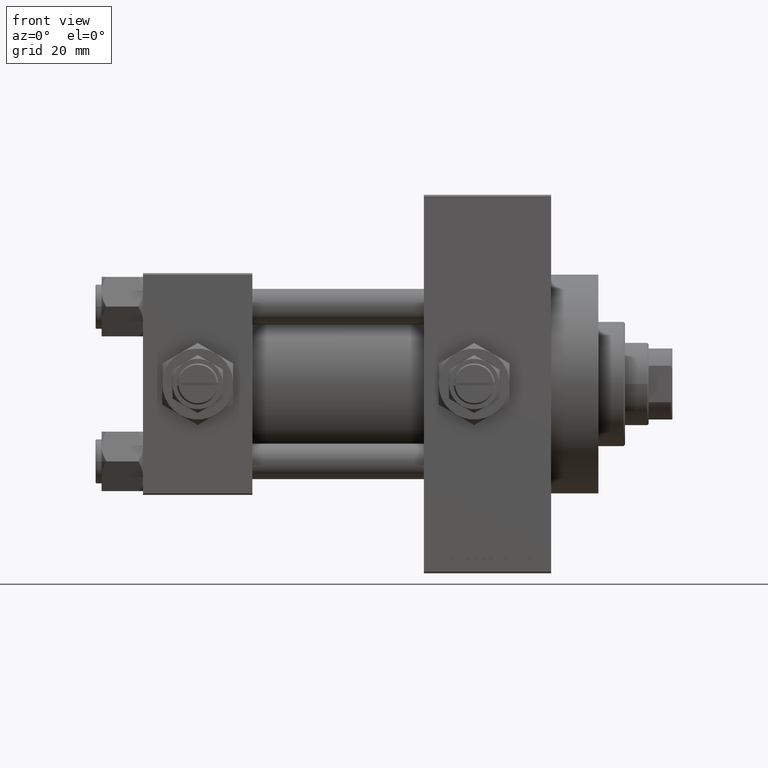
[diagram: clean part render]
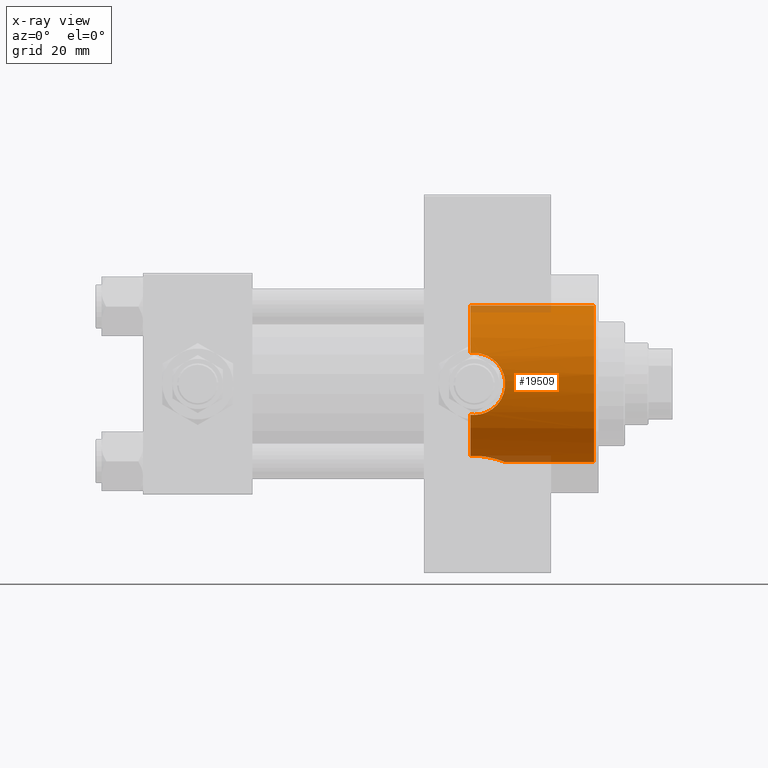
[diagram: x-ray — body ghosted, one internal face saturated and labeled with its STEP entity id]
A machine part, front view, then the same camera in x-ray: the body is ghosted and one INTERNAL B-rep face — a face not visible from any outside direction — is saturated and labeled: STEP entity #19509.
In plain terms, the highlighted cylindrical surface (partial cylindrical patch) has radius 26.5 mm, axis along (1, 0, 0).
Its self-contained STEP definition (entity closure, byte-faithful):
#409 = ORIENTED_EDGE ( 'NONE', *, *, #35284, .F. ) ;
#977 = AXIS2_PLACEMENT_3D ( 'NONE', #16472, #46018, #31722 ) ;
#1000 = CARTESIAN_POINT ( 'NONE',  ( 111.1611364518797984, -24.35049096341792918, -10.45498279016081611 ) ) ;
#1125 = CIRCLE ( 'NONE', #23466, 26.50000000000000355 ) ;
#1162 = ORIENTED_EDGE ( 'NONE', *, *, #44174, .F. ) ;
#1484 = CARTESIAN_POINT ( 'NONE',  ( 122.4800000000001603, 1.044554909417470286E-14, -26.50000000000006750 ) ) ;
#1740 = CARTESIAN_POINT ( 'NONE',  ( 116.5335921408433535, -9.455792512420327256, -24.75606841526506940 ) ) ;
#1938 = CARTESIAN_POINT ( 'NONE',  ( 119.8811664359166400, -25.58300917221409421, -6.916171625962136638 ) ) ;
#1967 = VERTEX_POINT ( 'NONE', #41189 ) ;
#1989 = CARTESIAN_POINT ( 'NONE',  ( 117.8022832347253370, -8.734885810676978224, -25.02004257437574708 ) ) ;
#2185 = CARTESIAN_POINT ( 'NONE',  ( 122.4800680225664280, -26.50002690099941205, -0.3451042088078361547 ) ) ;
#2230 = CARTESIAN_POINT ( 'NONE',  ( 114.4459359432478038, -10.21777125531387753, -24.45211332338677579 ) ) ;
#2685 = CARTESIAN_POINT ( 'NONE',  ( 116.3489237122697091, -24.72318467201152714, -9.541179571695423078 ) ) ;
#2860 = EDGE_CURVE ( 'NONE', #19227, #2862, #24876, .T. ) ;
#2862 = VERTEX_POINT ( 'NONE', #26405 ) ;
#3559 = ORIENTED_EDGE ( 'NONE', *, *, #49383, .T. ) ;
#3914 = CARTESIAN_POINT ( 'NONE',  ( 122.2075249541714896, -26.39335609204158573, 2.399236127628239235 ) ) ;
#4129 = B_SPLINE_CURVE_WITH_KNOTS ( 'NONE', 3,
 ( #1484, #16757, #28504, #47787, #47296, #39777, #5509, #13261, #17738, #32256, #43782, #44028, #5759, #13747, #20998, #1989, #36008, #32747, #1740, #24987, #40274, #2230, #29000, #47542, #44276, #10005 ),
 .UNSPECIFIED., .F., .F.,
 ( 4, 2, 2, 2, 2, 2, 2, 2, 2, 2, 2, 2, 4 ),
 ( 0.01781170071191075926, 0.02003745927526345838, 0.02115033855693980447, 0.02226321783861615403, 0.02337609712029250011, 0.02448897640196884967, 0.02671473496532152103, 0.02782761424699785324, 0.02894049352867418545, 0.03005337281035051766, 0.03116625209202684987, 0.03339201065537952123, 0.03561776921873219259 ),
 .UNSPECIFIED. ) ;
#4331 = LINE ( 'NONE', #33678, #47476 ) ;
#5095 = ORIENTED_EDGE ( 'NONE', *, *, #10393, .T. ) ;
#5247 = CARTESIAN_POINT ( 'NONE',  ( 112.0000000000000000, -24.33967132070604222, -10.47999999999999865 ) ) ;
#5463 = CARTESIAN_POINT ( 'NONE',  ( 120.3132647636415271, -25.71940794313460898, -6.390292897823913520 ) ) ;
#5509 = CARTESIAN_POINT ( 'NONE',  ( 121.6993435614955530, -3.985990130492286454, -26.20070574291653287 ) ) ;
#5759 = CARTESIAN_POINT ( 'NONE',  ( 119.5076201536012235, -7.348534936426531772, -25.46581292754184389 ) ) ;
#5760 = CARTESIAN_POINT ( 'NONE',  ( 110.7400000000000375, -24.37226292324945831, -10.40398000767014430 ) ) ;
#5956 = CARTESIAN_POINT ( 'NONE',  ( 112.0000000000000000, -24.33967132070604222, -10.47999999999999865 ) ) ;
#6692 = CARTESIAN_POINT ( 'NONE',  ( 121.9191483855533704, -26.28308039691835418, 3.400110870430098853 ) ) ;
#6937 = CARTESIAN_POINT ( 'NONE',  ( 121.3916535229813576, -26.08830885934473542, 4.663043711798784408 ) ) ;
#7666 = CARTESIAN_POINT ( 'NONE',  ( 115.7173844672076370, -24.61993612039164248, 9.804529592362731805 ) ) ;
#8776 = CARTESIAN_POINT ( 'NONE',  ( 110.7400000000000375, -24.37226292324945831, -10.40398000767014430 ) ) ;
#8795 = CARTESIAN_POINT ( 'NONE',  ( 110.7400000000000375, -10.40398000767013365, -24.37226292324945831 ) ) ;
#8924 = EDGE_CURVE ( 'NONE', #41801, #49029, #1125, .T. ) ;
#9459 = DIRECTION ( 'NONE',  ( 0.000000000000000000, 0.000000000000000000, -1.000000000000000000 ) ) ;
#9528 = EDGE_CURVE ( 'NONE', #12130, #19227, #4331, .T. ) ;
#10005 = CARTESIAN_POINT ( 'NONE',  ( 110.7400000000000375, -10.40398000767013365, -24.37226292324945831 ) ) ;
#10393 = EDGE_CURVE ( 'NONE', #45778, #16670, #33945, .T. ) ;
#10945 = CARTESIAN_POINT ( 'NONE',  ( 118.1110651716822275, -25.09360970262138224, 8.520611273842996880 ) ) ;
#11033 = ORIENTED_EDGE ( 'NONE', *, *, #2860, .T. ) ;
#11169 = DIRECTION ( 'NONE',  ( 0.000000000000000000, 0.000000000000000000, -1.000000000000000000 ) ) ;
#11187 = CARTESIAN_POINT ( 'NONE',  ( 113.3839948142214524, -24.36973996242157625, 10.41091756284553504 ) ) ;
#11314 = ORIENTED_EDGE ( 'NONE', *, *, #26562, .T. ) ;
#12130 = VERTEX_POINT ( 'NONE', #15766 ) ;
#13261 = CARTESIAN_POINT ( 'NONE',  ( 121.3963988635402984, -4.655434592126339588, -26.09007526830299639 ) ) ;
#13558 = LINE ( 'NONE', #46734, #33556 ) ;
#13747 = CARTESIAN_POINT ( 'NONE',  ( 118.6874981071936759, -8.077221093107549876, -25.24030799844107520 ) ) ;
#14296 = VERTEX_POINT ( 'NONE', #21015 ) ;
#14930 = CARTESIAN_POINT ( 'NONE',  ( 120.3165002292777785, -25.71874665637611201, 6.413821170274212946 ) ) ;
#15333 = CARTESIAN_POINT ( 'NONE',  ( 110.7400000000000375, 0.000000000000000000, 0.000000000000000000 ) ) ;
#15650 = ORIENTED_EDGE ( 'NONE', *, *, #28649, .T. ) ;
#15766 = CARTESIAN_POINT ( 'NONE',  ( 110.7400000000000375, 3.245314017740486554E-15, 26.50000000000000355 ) ) ;
#15882 = CARTESIAN_POINT ( 'NONE',  ( 152.5000000000000853, 0.000000000000000000, 0.000000000000000000 ) ) ;
#16270 = CARTESIAN_POINT ( 'NONE',  ( 111.5811236364006049, -24.33967132070604222, -10.47999999999999865 ) ) ;
#16472 = CARTESIAN_POINT ( 'NONE',  ( 110.7400000000000375, 0.000000000000000000, 0.000000000000000000 ) ) ;
#16670 = VERTEX_POINT ( 'NONE', #44573 ) ;
#16757 = CARTESIAN_POINT ( 'NONE',  ( 122.4800000000000324, -0.7466733969459961040, -26.50000000000001421 ) ) ;
#16966 = CARTESIAN_POINT ( 'NONE',  ( 121.0816778311290136, -25.97633853132261450, -5.273786452924785983 ) ) ;
#17049 = CARTESIAN_POINT ( 'NONE',  ( 110.7400000000000375, -24.37226292324945476, 10.40398000767014786 ) ) ;
#17205 = CARTESIAN_POINT ( 'NONE',  ( 122.1391112229688076, -26.36675217432884466, -2.738755341944245192 ) ) ;
#17451 = CARTESIAN_POINT ( 'NONE',  ( 122.4798633477534509, -26.49994595790488106, 0.6963870350870486892 ) ) ;
#17738 = CARTESIAN_POINT ( 'NONE',  ( 121.2276638786152176, -4.981583166679953045, -26.02957788900646463 ) ) ;
#17936 = CARTESIAN_POINT ( 'NONE',  ( 117.2635990777562256, -24.90054338428140568, -9.068796382691635571 ) ) ;
#18177 = FACE_OUTER_BOUND ( 'NONE', #40041, .T. ) ;
#18425 = CARTESIAN_POINT ( 'NONE',  ( 119.8850942087585736, -25.58093385762820660, 6.936447548980011035 ) ) ;
#18490 = AXIS2_PLACEMENT_3D ( 'NONE', #15882, #45442, #11169 ) ;
#18911 = CARTESIAN_POINT ( 'NONE',  ( 119.1663633815065140, -25.37171319999174912, 7.654298772871992895 ) ) ;
#19151 = CARTESIAN_POINT ( 'NONE',  ( 112.6982936874238703, -24.33967132070603867, 10.47999999999999865 ) ) ;
#19227 = VERTEX_POINT ( 'NONE', #47798 ) ;
#19425 = B_SPLINE_CURVE_WITH_KNOTS ( 'NONE', 3,
 ( #8776, #1000, #16270, #32022 ),
 .UNSPECIFIED., .F., .F.,
 ( 4, 4 ),
 ( 0.000000000000000000, 0.001255586767787659347 ),
 .UNSPECIFIED. ) ;
#19509 = ADVANCED_FACE ( 'NONE', ( #18177 ), #36702, .F. ) ;
#20703 = CARTESIAN_POINT ( 'NONE',  ( 120.5155153844950462, -25.78569419426082021, -6.118106053452859960 ) ) ;
#20998 = CARTESIAN_POINT ( 'NONE',  ( 118.3983008714430696, -8.308216825530728045, -25.16494175890557017 ) ) ;
#21015 = CARTESIAN_POINT ( 'NONE',  ( 122.4800000000001603, 1.044554909417470286E-14, -26.50000000000006750 ) ) ;
#21035 = CARTESIAN_POINT ( 'NONE',  ( 112.0000000000000000, -24.33967132070604222, 10.48000000000000220 ) ) ;
#21193 = CARTESIAN_POINT ( 'NONE',  ( 122.3421836049517140, -26.44572692659851754, -1.728475508984260278 ) ) ;
#22167 = DIRECTION ( 'NONE',  ( 1.000000000000000000, -0.000000000000000000, -0.000000000000000000 ) ) ;
#22911 = CARTESIAN_POINT ( 'NONE',  ( 121.8022638174866046, -26.23907308479208922, 3.723318718764354163 ) ) ;
#23466 = AXIS2_PLACEMENT_3D ( 'NONE', #15333, #45862, #26821 ) ;
#24693 = CARTESIAN_POINT ( 'NONE',  ( 116.6580558779861150, -24.77960996754317335, -9.394203453174529983 ) ) ;
#24876 = CIRCLE ( 'NONE', #18490, 26.50000000000000355 ) ;
#24987 = CARTESIAN_POINT ( 'NONE',  ( 115.8600678267363406, -9.750145953289912626, -24.64162310621549423 ) ) ;
#25691 = CARTESIAN_POINT ( 'NONE',  ( 119.6501220615578234, -25.51256335955728716, -7.170912732211446539 ) ) ;
#25933 = CARTESIAN_POINT ( 'NONE',  ( 117.2636119660474066, -24.89625137302610369, 9.087734872939172703 ) ) ;
#26362 = AXIS2_PLACEMENT_3D ( 'NONE', #32695, #39980, #9459 ) ;
#26405 = CARTESIAN_POINT ( 'NONE',  ( 152.5000000000000853, 0.000000000000000000, -26.50000000000000355 ) ) ;
#26562 = EDGE_CURVE ( 'NONE', #14296, #49029, #4129, .T. ) ;
#26668 = CARTESIAN_POINT ( 'NONE',  ( 114.3947302122627718, -24.45488967133337965, 10.20851256290626985 ) ) ;
#26821 = DIRECTION ( 'NONE',  ( 0.000000000000000000, 0.000000000000000000, -1.000000000000000000 ) ) ;
#28460 = CARTESIAN_POINT ( 'NONE',  ( 112.6904960883777846, -24.33967132070604222, -10.48000000000000043 ) ) ;
#28504 = CARTESIAN_POINT ( 'NONE',  ( 122.4011065554137900, -1.483758503940586060, -26.46850309434598003 ) ) ;
#28649 = EDGE_CURVE ( 'NONE', #41801, #45778, #19425, .T. ) ;
#29000 = CARTESIAN_POINT ( 'NONE',  ( 113.7216423275559407, -10.36418010715235383, -24.38933169417625990 ) ) ;
#29442 = CARTESIAN_POINT ( 'NONE',  ( 117.5577538920436780, -24.96463143003449403, -8.891425016462852327 ) ) ;
#29937 = CARTESIAN_POINT ( 'NONE',  ( 114.7286532048194516, -24.48994387988090082, 10.12445329003761252 ) ) ;
#30186 = CARTESIAN_POINT ( 'NONE',  ( 121.5385175848662982, -26.14168889184968947, 4.354785931857526826 ) ) ;
#31722 = DIRECTION ( 'NONE',  ( 0.000000000000000000, 0.000000000000000000, -1.000000000000000000 ) ) ;
#32022 = CARTESIAN_POINT ( 'NONE',  ( 112.0000000000000000, -24.33967132070604222, -10.47999999999999865 ) ) ;
#32256 = CARTESIAN_POINT ( 'NONE',  ( 120.8553297434205689, -5.616857363200493225, -25.89992295911057951 ) ) ;
#32655 = B_SPLINE_CURVE_WITH_KNOTS ( 'NONE', 3,
 ( #21035, #35800, #39818, #17049 ),
 .UNSPECIFIED., .F., .F.,
 ( 4, 4 ),
 ( 0.03437190755806011910, 0.03561776921873218565 ),
 .UNSPECIFIED. ) ;
#32695 = CARTESIAN_POINT ( 'NONE',  ( 110.7400000000000375, 0.000000000000000000, 0.000000000000000000 ) ) ;
#32747 = CARTESIAN_POINT ( 'NONE',  ( 116.8603660912149991, -9.291949300782539112, -24.81826977973611292 ) ) ;
#33556 = VECTOR ( 'NONE', #37556, 1000.000000000000000 ) ;
#33678 = CARTESIAN_POINT ( 'NONE',  ( 110.7400000000000375, 3.245314017740486554E-15, 26.50000000000000355 ) ) ;
#33685 = CARTESIAN_POINT ( 'NONE',  ( 115.3904700717597649, -24.57248644795726022, 9.922439993611771314 ) ) ;
#33929 = CARTESIAN_POINT ( 'NONE',  ( 122.4114040688938587, -26.47265107862981992, 1.382412405478188999 ) ) ;
#33945 = B_SPLINE_CURVE_WITH_KNOTS ( 'NONE', 3,
 ( #5956, #28460, #36212, #35962, #36949, #2685, #24693, #17936, #29442, #39982, #44723, #25691, #1938, #5463, #20703, #16966, #47495, #40228, #17205, #21193, #47742, #36456, #2185, #17451, #33929, #3914, #49213, #6692, #22911, #30186, #6937, #34420, #41710, #14930, #18425, #18911, #38186, #45461, #10945, #25933, #37447, #7666, #33685, #29937, #26668, #11187, #19151, #45217 ),
 .UNSPECIFIED., .F., .F.,
 ( 4, 2, 2, 2, 2, 2, 2, 2, 2, 2, 2, 2, 2, 2, 2, 2, 2, 2, 2, 2, 2, 2, 2, 4 ),
 ( 0.001255586767787659347, 0.003325356817179700875, 0.005395126866571742404, 0.006430011891267743869, 0.007464896915963744467, 0.009534666965355782092, 0.01056955199005181305, 0.01160443701474784574, 0.01367420706413988857, 0.01574397711353192966, 0.01677886213822795194, 0.01781374716292397076, 0.01988351721231601532, 0.02091840223701203413, 0.02195328726170805295, 0.02298817228640406482, 0.02402305731110008363, 0.02609282736049212126, 0.02712771238518812619, 0.02816259740988413460, 0.03023236745927610630, 0.03126725248397210777, 0.03230213750866811617, 0.03437190755806011910 ),
 .UNSPECIFIED. ) ;
#34420 = CARTESIAN_POINT ( 'NONE',  ( 121.0679913760332198, -25.97354752128884314, 5.264851845784580320 ) ) ;
#35284 = EDGE_CURVE ( 'NONE', #14296, #2862, #13558, .T. ) ;
#35800 = CARTESIAN_POINT ( 'NONE',  ( 111.5796744023297293, -24.33967132070604222, 10.48000000000000220 ) ) ;
#35962 = CARTESIAN_POINT ( 'NONE',  ( 114.7461877943153752, -24.48462605612510856, -10.13781324604279099 ) ) ;
#36008 = CARTESIAN_POINT ( 'NONE',  ( 117.4947120380321479, -8.931495953537135435, -24.95025484238639635 ) ) ;
#36212 = CARTESIAN_POINT ( 'NONE',  ( 113.3786097457406044, -24.36915941385104745, -10.41231194222669387 ) ) ;
#36456 = CARTESIAN_POINT ( 'NONE',  ( 122.4626037639855838, -26.49310609510639836, -0.6963515910539334053 ) ) ;
#36702 = CYLINDRICAL_SURFACE ( 'NONE', #26362, 26.50000000000000355 ) ;
#36932 = ORIENTED_EDGE ( 'NONE', *, *, #9528, .T. ) ;
#36949 = CARTESIAN_POINT ( 'NONE',  ( 115.4024368383431352, -24.56844862672225815, -9.935854460437969493 ) ) ;
#37447 = CARTESIAN_POINT ( 'NONE',  ( 116.6659000583122605, -24.77500862834706652, 9.408993987884901600 ) ) ;
#37556 = DIRECTION ( 'NONE',  ( 1.000000000000000000, -0.000000000000000000, -0.000000000000000000 ) ) ;
#38186 = CARTESIAN_POINT ( 'NONE',  ( 118.9147507852791676, -25.30155050139244111, 7.882476147205595751 ) ) ;
#38523 = CIRCLE ( 'NONE', #977, 26.50000000000000355 ) ;
#39777 = CARTESIAN_POINT ( 'NONE',  ( 121.8335546017134305, -3.642695553053290958, -26.25084325021122567 ) ) ;
#39818 = CARTESIAN_POINT ( 'NONE',  ( 111.1580741051582635, -24.35064928096444348, 10.45461191700782422 ) ) ;
#39980 = DIRECTION ( 'NONE',  ( 1.000000000000000000, -0.000000000000000000, -0.000000000000000000 ) ) ;
#39982 = CARTESIAN_POINT ( 'NONE',  ( 118.4049404352972061, -25.16229795609818964, -8.322848467437539810 ) ) ;
#40041 = EDGE_LOOP ( 'NONE', ( #1162, #36932, #11033, #409, #11314, #44291, #15650, #5095, #3559 ) ) ;
#40228 = CARTESIAN_POINT ( 'NONE',  ( 121.9389570606566053, -26.28956209411557765, -3.395175965175880606 ) ) ;
#40274 = CARTESIAN_POINT ( 'NONE',  ( 115.5115735695664796, -9.881194972351249106, -24.58915736193083745 ) ) ;
#41189 = CARTESIAN_POINT ( 'NONE',  ( 110.7400000000000375, -24.37226292324945476, 10.40398000767014786 ) ) ;
#41710 = CARTESIAN_POINT ( 'NONE',  ( 120.8904987776702171, -25.91192981801191664, 5.559420023815757617 ) ) ;
#41801 = VERTEX_POINT ( 'NONE', #5760 ) ;
#43782 = CARTESIAN_POINT ( 'NONE',  ( 120.6508763872861323, -5.926808359427498729, -25.83050513016100069 ) ) ;
#44028 = CARTESIAN_POINT ( 'NONE',  ( 119.9981355541606973, -6.811571481472474154, -25.61680511670815363 ) ) ;
#44174 = EDGE_CURVE ( 'NONE', #12130, #1967, #38523, .T. ) ;
#44276 = CARTESIAN_POINT ( 'NONE',  ( 111.4868983507928561, -10.49443499905853550, -24.33364968799255124 ) ) ;
#44291 = ORIENTED_EDGE ( 'NONE', *, *, #8924, .F. ) ;
#44573 = CARTESIAN_POINT ( 'NONE',  ( 112.0000000000000000, -24.33967132070604222, 10.48000000000000220 ) ) ;
#44723 = CARTESIAN_POINT ( 'NONE',  ( 118.9276451403627135, -25.30216499957183984, -7.893159106980520257 ) ) ;
#45217 = CARTESIAN_POINT ( 'NONE',  ( 112.0000000000000000, -24.33967132070604222, 10.48000000000000220 ) ) ;
#45442 = DIRECTION ( 'NONE',  ( 1.000000000000000000, 0.000000000000000000, 0.000000000000000000 ) ) ;
#45461 = CARTESIAN_POINT ( 'NONE',  ( 118.3864792908362773, -25.16230905708522414, 8.316254619809553716 ) ) ;
#45778 = VERTEX_POINT ( 'NONE', #5247 ) ;
#45862 = DIRECTION ( 'NONE',  ( 1.000000000000000000, 0.000000000000000000, 0.000000000000000000 ) ) ;
#46018 = DIRECTION ( 'NONE',  ( 1.000000000000000000, 0.000000000000000000, 0.000000000000000000 ) ) ;
#46734 = CARTESIAN_POINT ( 'NONE',  ( 110.7400000000000375, 0.000000000000000000, -26.50000000000000355 ) ) ;
#47296 = CARTESIAN_POINT ( 'NONE',  ( 122.0665133812162537, -2.938253791439165319, -26.33899517628733733 ) ) ;
#47476 = VECTOR ( 'NONE', #22167, 1000.000000000000000 ) ;
#47495 = CARTESIAN_POINT ( 'NONE',  ( 121.4057128516256370, -26.09263577897064224, -4.673612418766447618 ) ) ;
#47542 = CARTESIAN_POINT ( 'NONE',  ( 112.2451057705678039, -10.50334255171939368, -24.32972513250579993 ) ) ;
#47742 = CARTESIAN_POINT ( 'NONE',  ( 122.3935590552673744, -26.46591511510092687, -1.387412420731371165 ) ) ;
#47787 = CARTESIAN_POINT ( 'NONE',  ( 122.1654842721633969, -2.575241489874368295, -26.37710048711162614 ) ) ;
#47798 = CARTESIAN_POINT ( 'NONE',  ( 152.5000000000000853, 3.245314017740486554E-15, 26.50000000000000355 ) ) ;
#49029 = VERTEX_POINT ( 'NONE', #8795 ) ;
#49213 = CARTESIAN_POINT ( 'NONE',  ( 122.1219222710722505, -26.36027543327034905, 2.738055544399104146 ) ) ;
#49383 = EDGE_CURVE ( 'NONE', #16670, #1967, #32655, .T. ) ;